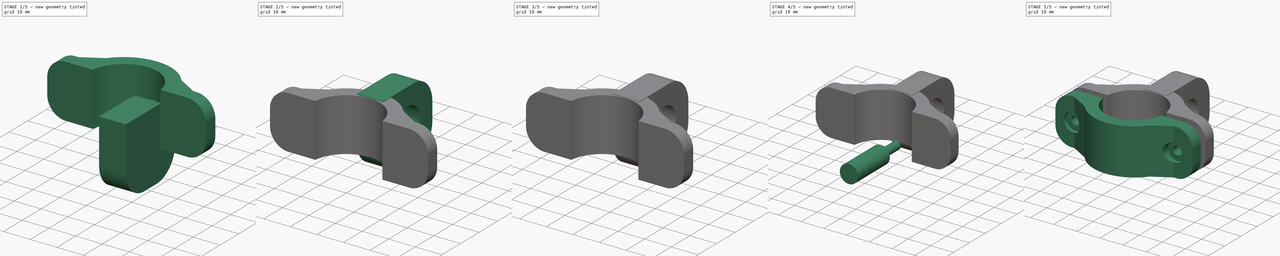
[diagram: build sequence overview — one tinted view per stage of 5, left to right]
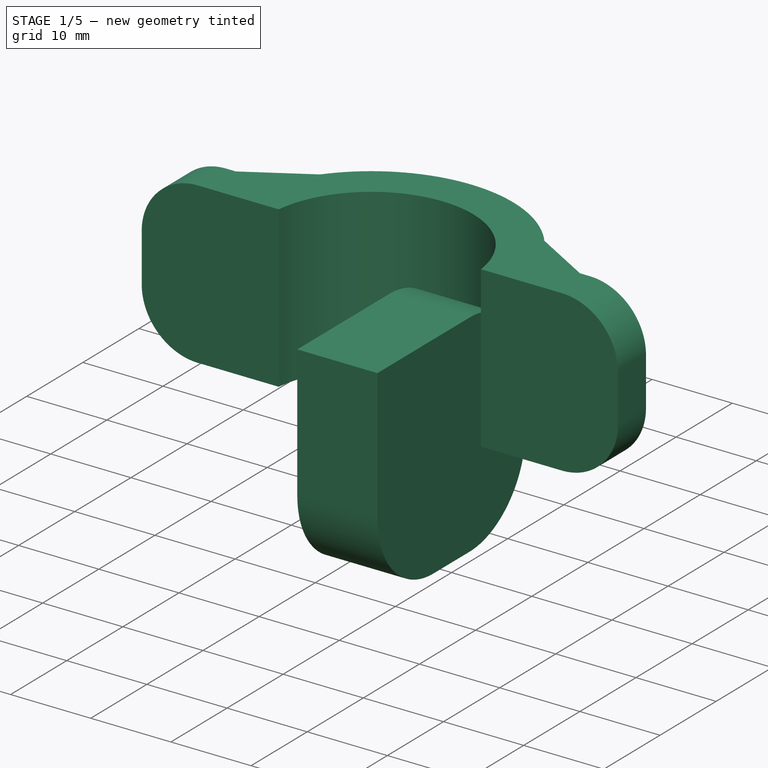
[diagram: stage 1 of 5 — iso view after this stage's code; geometry added in this stage tinted green]
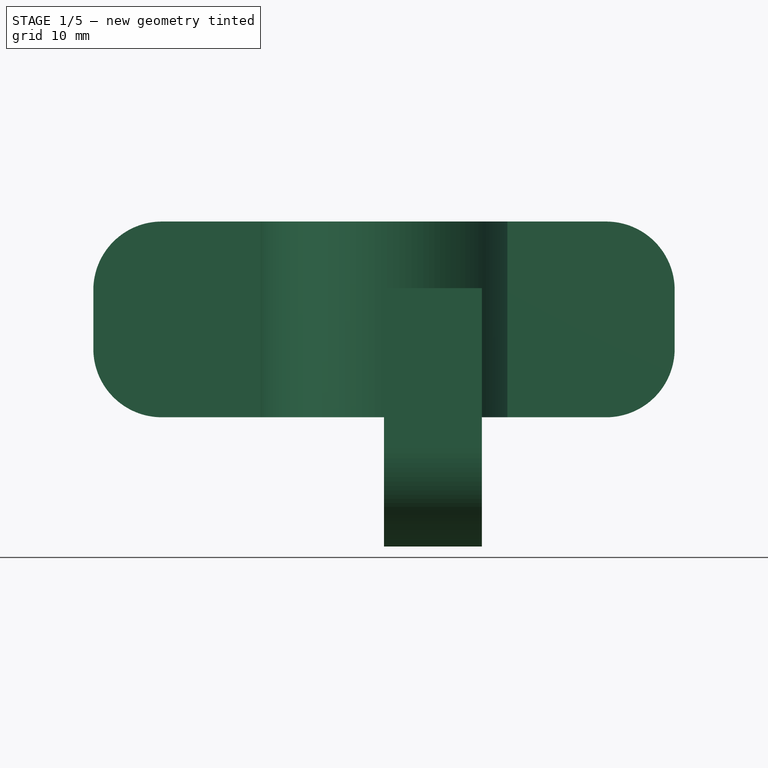
[diagram: stage 1 of 5 — front view after this stage's code; geometry added in this stage tinted green]
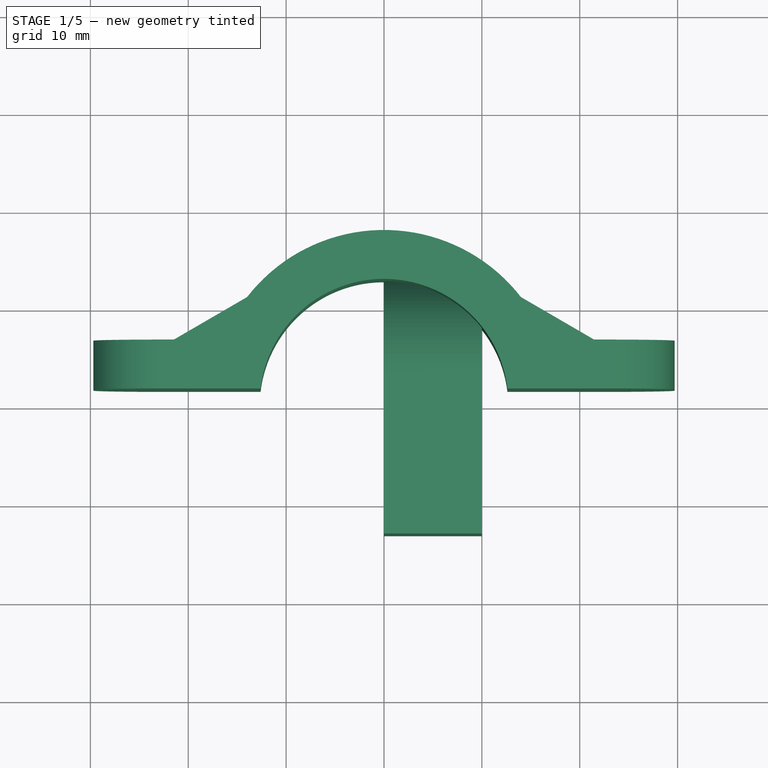
[diagram: stage 1 of 5 — top view after this stage's code; geometry added in this stage tinted green]
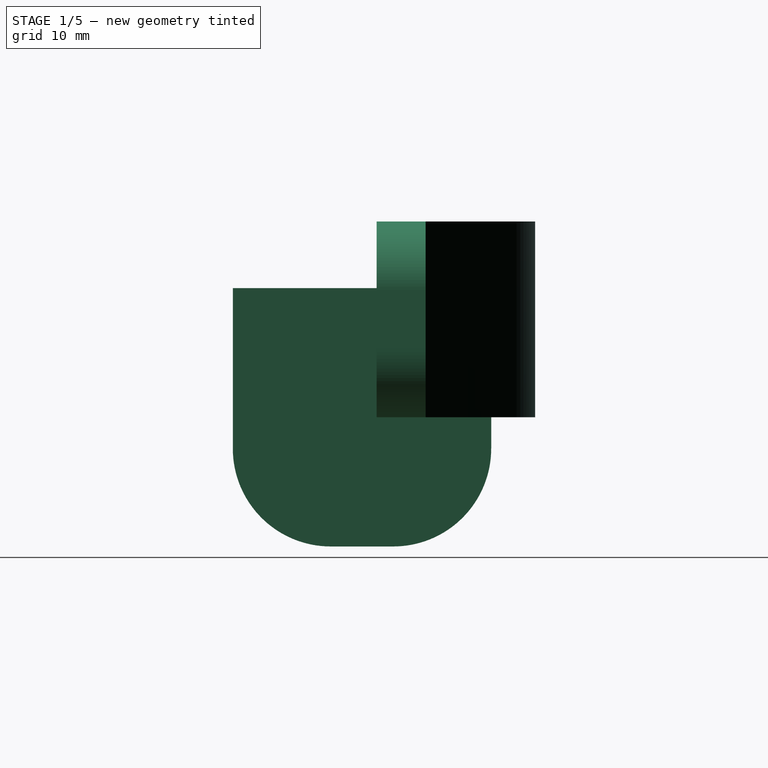
[diagram: stage 1 of 5 — right view after this stage's code; geometry added in this stage tinted green]
FCSTD DOCUMENT  (FreeCAD 0.19R)
Label: pipe_25mm_attach_16mm_bring
License: All rights reserved
LicenseURL: http://en.wikipedia.org/wiki/All_rights_reserved
objects: PartDesign::Body×5, Part::Cylinder×5, Part::Feature×4, Sketcher::SketchObject×4, PartDesign::Pad×4, Part::MultiFuse×3, Part::Cut×3, App::Part×3, PartDesign::FeatureBase×3, PartDesign::ShapeBinder×2, Part::FeaturePython×2, Spreadsheet::Sheet×1, Part::Mirroring×1, Part::Box×1, Part::Fillet×1
note: 40 computed .brp shape members not serialized (recipe doc carries the construction recipe); baked Part::Feature solids carry a one-line shape summary decoded from their .brp

FEATURE [Part::Cylinder] Cylinder005  label="bring holder hole"
  Angle = 360
  AttacherType = Attacher::AttachEngine3D
  Height = 10
  Placement = pos=(0,0,0) rot=(0,1,0;1.5708rad)
  Radius = 6.5
  expr: Radius = <<p>>.bring_holder_hole_r
  expr: Height = <<p>>.bring_holder_size
FEATURE [Part::Box] Box  label="outer bring holder cube"
  AttacherType = Attacher::AttachEngine3D
  Height = 26.4
  Length = 10
  Placement = pos=(0,-13.2,-13.2) rot=(0,0,1;0rad)
  Width = 26.4
  expr: .Placement.Base.z = -Height / 2
  expr: .Placement.Base.y = -Width / 2
  expr: Width = (<<p>>.bring_r + <<p>>.attachment_wall) * 2
  expr: Length = <<p>>.bring_holder_size
  expr: Height = (<<p>>.bring_r + <<p>>.attachment_wall) * 2
FEATURE [Part::Fillet] Fillet  label="outer bring holder cube fillet"
  Base = -> Box
  Edges = 3 edges r=10: [Edge9,Edge11,Edge12]
FEATURE [PartDesign::Body] Body003  label="bring holder cut clone"
  BaseFeature = -> Cut023015003
  Group = -> [Clone002]
  Origin = -> Origin005
  Placement = pos=(0,8,9) rot=(0,0,1;0rad)
  Tip = -> Clone002
FEATURE [Part::Feature] Cut023015004  label="tube block cut003"
  shape: bbox 59.4 x 35.4 x 20 mm, 58 faces, 2 solids (baked)
FEATURE [PartDesign::ShapeBinder] ShapeBinder001
  Support = -> [Cut023015004]
  TraceSupport = false
FEATURE [Sketcher::SketchObject] Sketch003
  ExternalGeometry = -> [ShapeBinder001]
  FullyConstrained = false
  MapMode = 5
  Support = -> [XY_Plane008]
  expr: Constraints[2] = <<p>>.pipe_r
  expr: Constraints[18] = <<p>>.pipe_r + <<p>>.attachment_wall
  sketch-geometry (10):
    g0: ArcOfCircle CenterX=2.13e-14 CenterY=3.09e-14 CenterZ=0 NormalX=0 NormalY=0 NormalZ=1 AngleXU=0 Radius=12.7 StartAngle=0.118387 EndAngle=3.02321
    g1: LineSegment StartX=-22.7 StartY=1.5 StartZ=0 EndX=-22.7 EndY=6.5 EndZ=0
    g2: LineSegment StartX=-22.7 StartY=6.5 StartZ=0 EndX=-21.4633 EndY=6.5 EndZ=0
    g3: LineSegment StartX=-21.4633 StartY=6.5 StartZ=0 EndX=-13.9887 EndY=10.8447 EndZ=0
    g4: LineSegment StartX=13.9887 StartY=10.8447 StartZ=0 EndX=21.4633 EndY=6.5 EndZ=0
    g5: LineSegment StartX=21.4633 StartY=6.5 StartZ=0 EndX=22.7 EndY=6.5 EndZ=0
    g6: LineSegment StartX=22.7 StartY=6.5 StartZ=0 EndX=22.7 EndY=1.5 EndZ=0
    g7: ArcOfCircle CenterX=-7e-16 CenterY=-5.789e-13 CenterZ=0 NormalX=0 NormalY=0 NormalZ=1 AngleXU=0 Radius=17.7 StartAngle=0.659465 EndAngle=2.48213
    g8: LineSegment StartX=-22.7 StartY=1.5 StartZ=0 EndX=-12.6111 EndY=1.5 EndZ=0
    g9: LineSegment StartX=12.6111 StartY=1.5 StartZ=0 EndX=22.7 EndY=1.5 EndZ=0
  constraints (23):
    c: Coincident(g0,g-3)
    c: Coincident(g0,g-4)
    c: Radius(g0) = 12.7
    c: Coincident(g1,g-5)
    c: Coincident(g1,g-7)
    c: Coincident(g2,g1)
    c: Coincident(g2,g-8)
    c: Coincident(g3,g2)
    c: Coincident(g3,g-9)
    c: Coincident(g4,g-10)
    c: Coincident(g4,g-11)
    c: Coincident(g5,g4)
    c: Horizontal(g5)
    c: Coincident(g6,g5)
    c: Coincident(g6,g-6)
    c: Vertical(g6)
    c: Coincident(g7,g3)
    c: Coincident(g7,g4)
    c: Radius(g7) = 17.7
    c: Coincident(g8,g1)
    c: Coincident(g8,g0)
    c: Coincident(g9,g0)
    c: Coincident(g9,g6)
FEATURE [PartDesign::Pad] Pad002
  Direction = (1,1,1)
  Length = 20
  Length2 = 100
  Profile = -> Sketch003
  Type = 0
  expr: Length = <<p>>.attachment_size
FEATURE [Sketcher::SketchObject] Sketch004
  AttachmentOffset = pos=(0,0,-1.5) rot=(0,0,1;0rad)
  ExternalGeometry = -> [Pad002,ShapeBinder001]
  FullyConstrained = false
  MapMode = 5
  Placement = pos=(0,1.5,3e-16) rot=(1,0,0;1.5708rad)
  Support = -> [XZ_Plane008]
  sketch-geometry (12):
    g0: LineSegment StartX=-12.6111 StartY=20 StartZ=0 EndX=-22.7 EndY=20 EndZ=0
    g1: LineSegment StartX=-12.6111 StartY=0 StartZ=0 EndX=-22.7 EndY=0 EndZ=0
    g2: LineSegment StartX=12.6111 StartY=20 StartZ=0 EndX=22.7 EndY=20 EndZ=0
    g3: LineSegment StartX=22.7 StartY=0 StartZ=0 EndX=12.6111 EndY=0 EndZ=0
    g4: LineSegment StartX=-12.6111 StartY=20 StartZ=0 EndX=-12.6111 EndY=0 EndZ=0
    g5: LineSegment StartX=12.6111 StartY=20 StartZ=0 EndX=12.6111 EndY=0 EndZ=0
    g6: LineSegment StartX=-29.7 StartY=13 StartZ=0 EndX=-29.7 EndY=7 EndZ=0
    g7: LineSegment StartX=29.7 StartY=13 StartZ=0 EndX=29.7 EndY=7 EndZ=0
    g8: ArcOfCircle CenterX=-22.7 CenterY=7 CenterZ=0 NormalX=0 NormalY=0 NormalZ=1 AngleXU=0 Radius=7 StartAngle=3.14159 EndAngle=4.71239
    g9: ArcOfCircle CenterX=-22.7 CenterY=13 CenterZ=0 NormalX=0 NormalY=0 NormalZ=1 AngleXU=0 Radius=7 StartAngle=1.5708 EndAngle=3.14159
    g10: ArcOfCircle CenterX=22.7 CenterY=13 CenterZ=0 NormalX=0 NormalY=0 NormalZ=1 AngleXU=0 Radius=7 StartAngle=-1.688e-13 EndAngle=1.5708
    g11: ArcOfCircle CenterX=22.7 CenterY=7 CenterZ=0 NormalX=0 NormalY=0 NormalZ=1 AngleXU=0 Radius=7 StartAngle=4.71239 EndAngle=6.28319
  constraints (24):
    c: Coincident(g0,g-7)
    c: Coincident(g1,g-8)
    c: Coincident(g1,g-3) = 1.5708
    c: Coincident(g0,g-4) = -1.5708
    c: Coincident(g2,g-9)
    c: Coincident(g3,g-10)
    c: Coincident(g4,g0)
    c: Coincident(g4,g1)
    c: Coincident(g5,g2)
    c: Coincident(g5,g3)
    c: Coincident(g2,g-5) = 1.5708
    c: Coincident(g3,g-6) = 1.5708
    c: Coincident(g6,g-11)
    c: Coincident(g6,g-12)
    c: Coincident(g7,g-13)
    c: Coincident(g7,g-14)
    c: Coincident(g8,g6)
    c: Coincident(g9,g6)
    c: Coincident(g10,g7)
    c: Coincident(g11,g7)
    c: Tangent(g9,g0) = -1.5708
    c: Tangent(g8,g1) = 1.5708
    c: Tangent(g10,g2) = 1.5708
    c: Tangent(g11,g3) = 1.5708
FEATURE [PartDesign::Pad] Pad003
  BaseFeature = -> Pad002
  Direction = (1,1,1)
  Length = 5
  Length2 = 100
  Profile = -> Sketch004
  Reversed = true
  Type = 0
  expr: Length = <<p>>.attachment_wall
FEATURE [PartDesign::Body] Body005  label="25 mm attachment V2 body"
  Group = -> [ShapeBinder001,Sketch003,Pad002,Sketch004,Pad003]
  Origin = -> Origin008
  Tip = -> Pad003
FEATURE [App::Part] Part002  label="25 mm attachment V2 part"
  Group = -> [Body005]
  Origin = -> Origin006
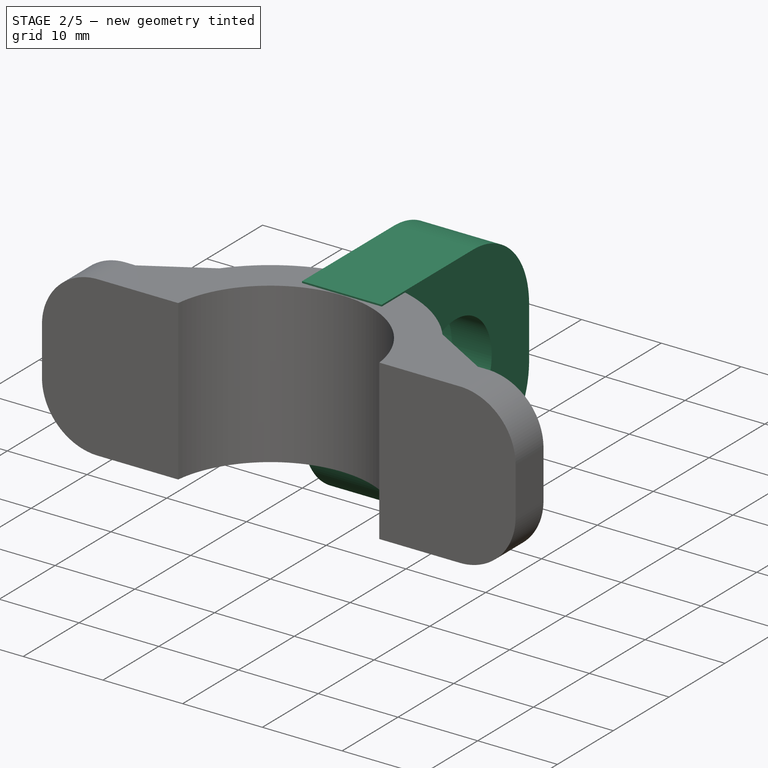
[diagram: stage 2 of 5 — iso view after this stage's code; geometry added in this stage tinted green]
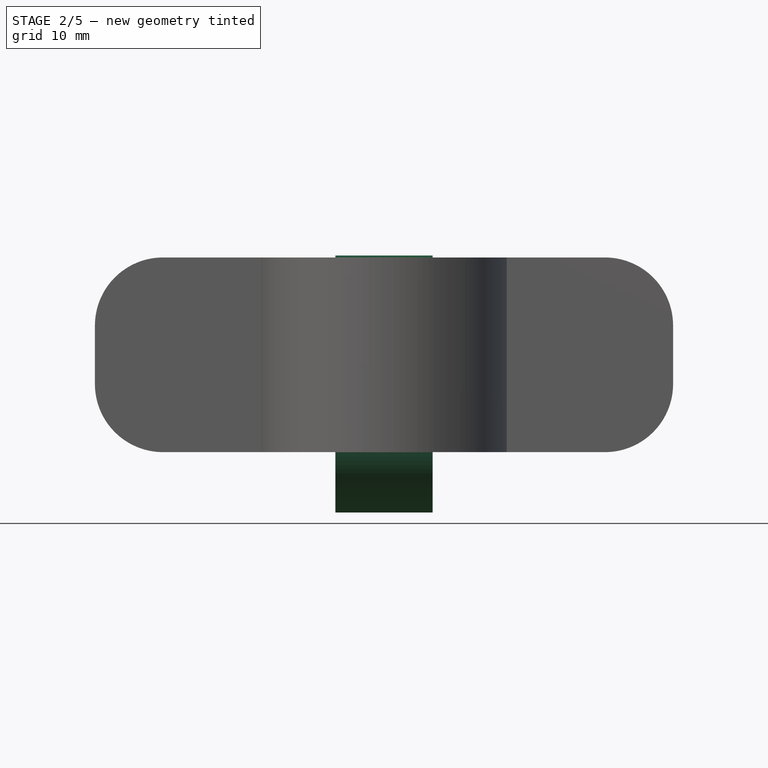
[diagram: stage 2 of 5 — front view after this stage's code; geometry added in this stage tinted green]
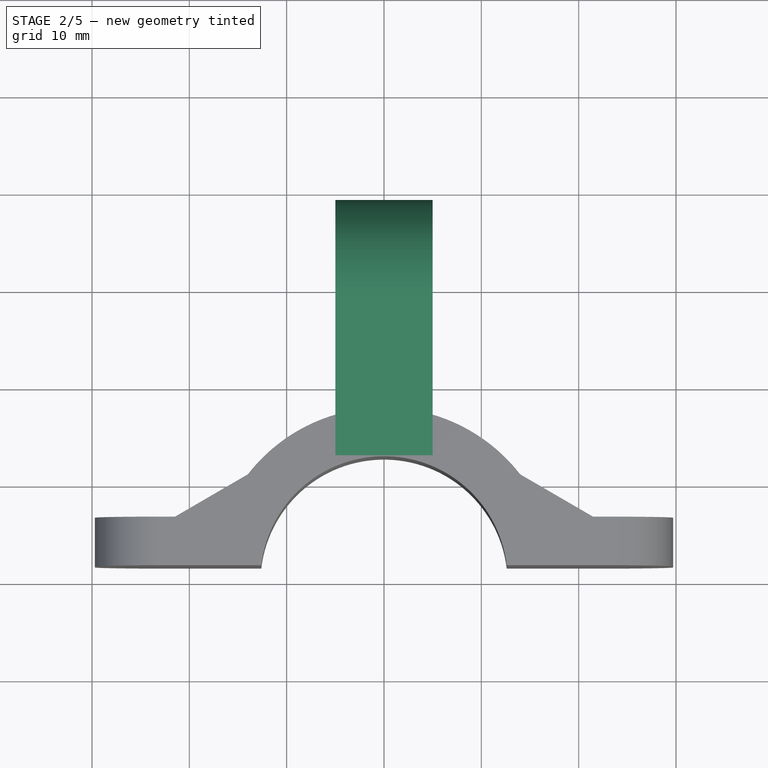
[diagram: stage 2 of 5 — top view after this stage's code; geometry added in this stage tinted green]
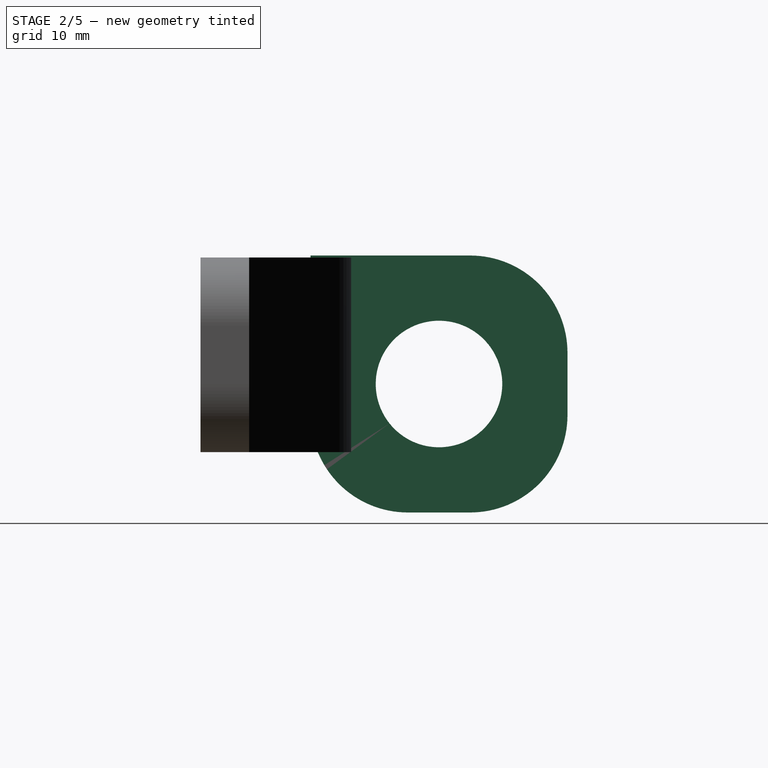
[diagram: stage 2 of 5 — right view after this stage's code; geometry added in this stage tinted green]
FEATURE [PartDesign::Body] Body002  label="25 mm attachment inserted clone"
  BaseFeature = -> Cut023015002
  Group = -> [Clone001]
  Origin = -> Origin003
  Tip = -> Clone001
FEATURE [Part::Cylinder] Cylinder004  label="inner bring holder cylinder"
  Angle = 360
  AttacherType = Attacher::AttachEngine3D
  Height = 5
  Placement = pos=(0,0,0) rot=(0,1,0;1.5708rad)
  Radius = 8.2
  expr: Height = <<p>>.bring_size
  expr: Radius = <<p>>.bring_r
FEATURE [Part::MultiFuse] Fusion001  label="bring holder extract"
  Shapes = -> [Cylinder004,Cylinder005]
FEATURE [Part::Cut] Cut023015003  label="bring holder cut"
  Base = -> Fillet
  Placement = pos=(-5,26,7) rot=(0,0,1;0rad)
  Tool = -> Fusion001
  expr: .Placement.Base.x = -<<p>>.bring_holder_size / 2
FEATURE [App::Part] Part001  label="25 mm 16mm bring attachment part"
  Group = -> [Fusion002]
  Origin = -> Origin004
FEATURE [Part::Feature] Cut002003  label="bottom half cut001"
  shape: bbox 64.6 x 27.3 x 30 mm, 38 faces (baked)
FEATURE [Part::Feature] Cut001001  label="top half cut001"
  shape: bbox 64.6 x 27.3 x 30 mm, 38 faces (baked)
FEATURE [PartDesign::FeatureBase] Clone002
  BaseFeature = -> Cut023015003
  Placement = pos=(-5,26,7) rot=(0,0,1;0rad)
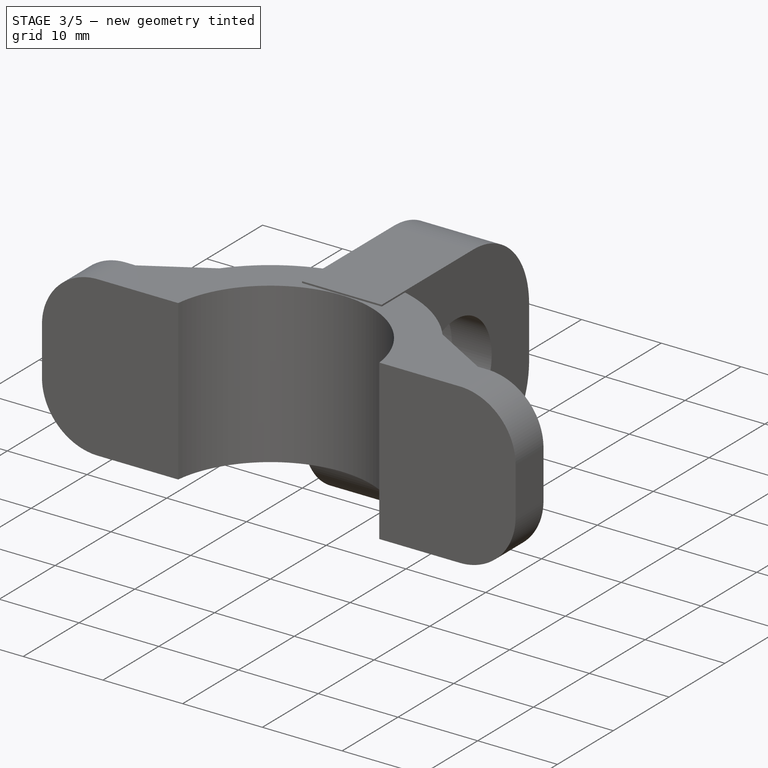
[diagram: stage 3 of 5 — iso view after this stage's code; geometry added in this stage tinted green]
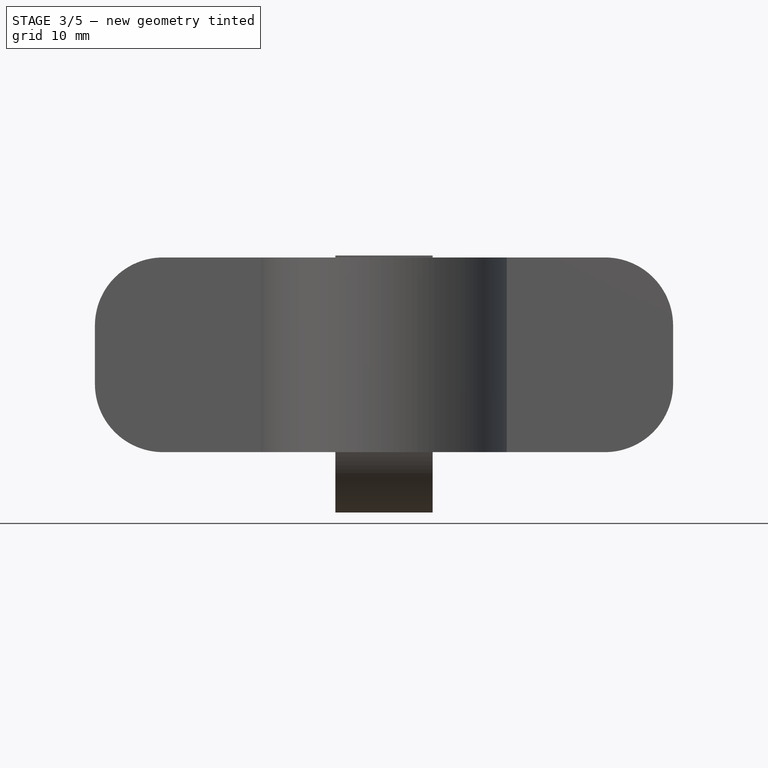
[diagram: stage 3 of 5 — front view after this stage's code; geometry added in this stage tinted green]
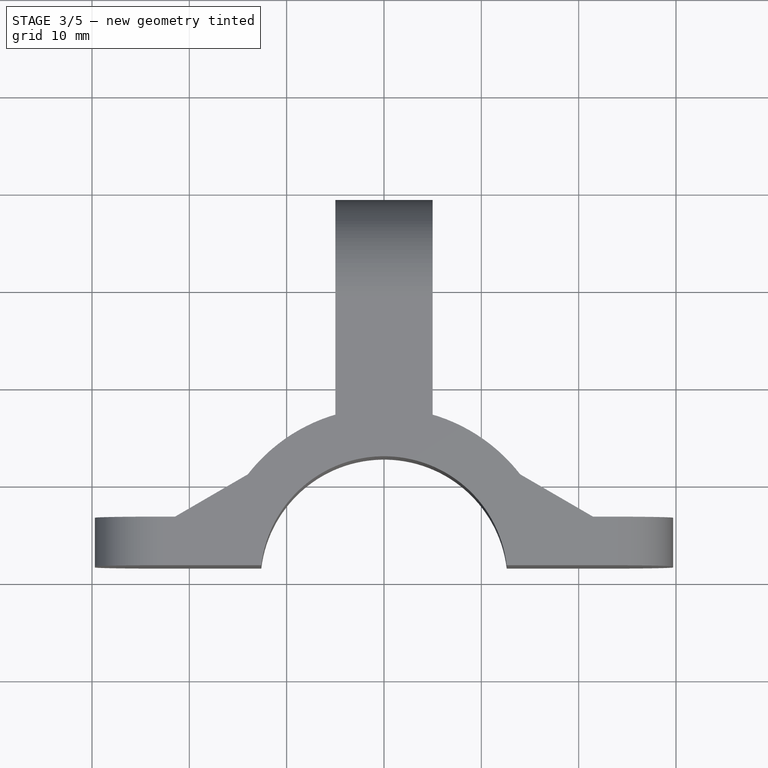
[diagram: stage 3 of 5 — top view after this stage's code; geometry added in this stage tinted green]
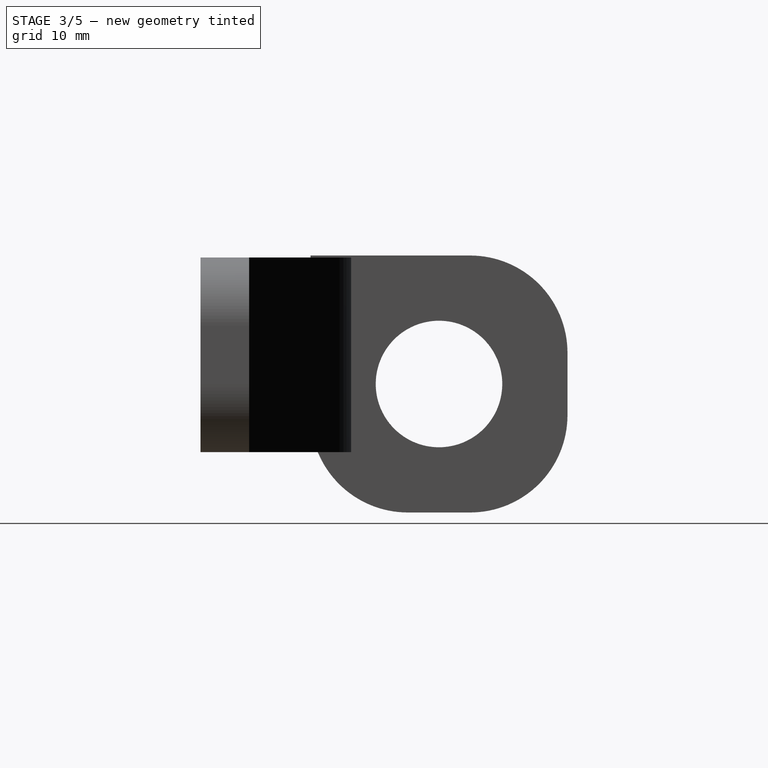
[diagram: stage 3 of 5 — right view after this stage's code; geometry added in this stage tinted green]
FEATURE [Part::Feature] Cut023015001  label="tube block cut002"
  shape: bbox 59.4 x 35.4 x 20 mm, 58 faces, 2 solids (baked)
FEATURE [Spreadsheet::Sheet] Spreadsheet  label="p"
  cells = A1=pipe_r; B1(pipe_r)==12.7mm; A2=attachment_wall; B2(attachment_wall)==5mm; A3=attachment_size; B3(attachment_size)==20mm; A4=insert_r; B4(insert_r)==2.2mm; A5=hole_r; B5(hole_r)==1.8mm; A6=bolt_head_r; B6(bolt_head_r)==4mm; A7=bring_r; B7(bring_r)==8.199999999999999mm; A8=bring_size; B8(bring_size)==5mm; A9=bring_holder_size; B9(bring_holder_size)==10mm; A10=bring_holder_hole_r; B10(bring_holder_hole_r)==6.5mm
FEATURE [PartDesign::ShapeBinder] ShapeBinder
  Support = -> [Cut023015001]
  TraceSupport = false
FEATURE [Sketcher::SketchObject] Sketch
  ExternalGeometry = -> [ShapeBinder]
  FullyConstrained = false
  MapMode = 5
  Support = -> [XY_Plane001]
  expr: Constraints[18] = <<p>>.pipe_r + <<p>>.attachment_wall
  expr: Constraints[2] = <<p>>.pipe_r
  sketch-geometry (10):
    g0: ArcOfCircle CenterX=2.13e-14 CenterY=3.09e-14 CenterZ=0 NormalX=0 NormalY=0 NormalZ=1 AngleXU=0 Radius=12.7 StartAngle=0.118387 EndAngle=3.02321
    g1: LineSegment StartX=-22.7 StartY=1.5 StartZ=0 EndX=-22.7 EndY=6.5 EndZ=0
    g2: LineSegment StartX=-22.7 StartY=6.5 StartZ=0 EndX=-21.4633 EndY=6.5 EndZ=0
    g3: LineSegment StartX=-21.4633 StartY=6.5 StartZ=0 EndX=-13.9887 EndY=10.8447 EndZ=0
    g4: LineSegment StartX=13.9887 StartY=10.8447 StartZ=0 EndX=21.4633 EndY=6.5 EndZ=0
    g5: LineSegment StartX=21.4633 StartY=6.5 StartZ=0 EndX=22.7 EndY=6.5 EndZ=0
    g6: LineSegment StartX=22.7 StartY=6.5 StartZ=0 EndX=22.7 EndY=1.5 EndZ=0
    g7: ArcOfCircle CenterX=-7e-16 CenterY=-5.789e-13 CenterZ=0 NormalX=0 NormalY=0 NormalZ=1 AngleXU=0 Radius=17.7 StartAngle=0.659465 EndAngle=2.48213
    g8: LineSegment StartX=-22.7 StartY=1.5 StartZ=0 EndX=-12.6111 EndY=1.5 EndZ=0
    g9: LineSegment StartX=12.6111 StartY=1.5 StartZ=0 EndX=22.7 EndY=1.5 EndZ=0
  constraints (23):
    c: Coincident(g0,g-3)
    c: Coincident(g0,g-4)
    c: Radius(g0) = 12.7
    c: Coincident(g1,g-5)
    c: Coincident(g1,g-7)
    c: Coincident(g2,g1)
    c: Coincident(g2,g-8)
    c: Coincident(g3,g2)
    c: Coincident(g3,g-9)
    c: Coincident(g4,g-10)
    c: Coincident(g4,g-11)
    c: Coincident(g5,g4)
    c: Horizontal(g5)
    c: Coincident(g6,g5)
    c: Coincident(g6,g-6)
    c: Vertical(g6)
    c: Coincident(g7,g3)
    c: Coincident(g7,g4)
    c: Radius(g7) = 17.7
    c: Coincident(g8,g1)
    c: Coincident(g8,g0)
    c: Coincident(g9,g0)
    c: Coincident(g9,g6)
FEATURE [PartDesign::Pad] Pad
  Direction = (1,1,1)
  Length = 20
  Length2 = 100
  Profile = -> Sketch
  Type = 0
  expr: Length = <<p>>.attachment_size
FEATURE [Sketcher::SketchObject] Sketch001
  AttachmentOffset = pos=(0,0,-1.5) rot=(0,0,1;0rad)
  ExternalGeometry = -> [Pad,ShapeBinder]
  FullyConstrained = false
  MapMode = 5
  Placement = pos=(0,1.5,3e-16) rot=(1,0,0;1.5708rad)
  Support = -> [XZ_Plane001]
  sketch-geometry (12):
    g0: LineSegment StartX=-12.6111 StartY=20 StartZ=0 EndX=-22.7 EndY=20 EndZ=0
    g1: LineSegment StartX=-12.6111 StartY=0 StartZ=0 EndX=-22.7 EndY=0 EndZ=0
    g2: LineSegment StartX=12.6111 StartY=20 StartZ=0 EndX=22.7 EndY=20 EndZ=0
    g3: LineSegment StartX=22.7 StartY=0 StartZ=0 EndX=12.6111 EndY=0 EndZ=0
    g4: LineSegment StartX=-12.6111 StartY=20 StartZ=0 EndX=-12.6111 EndY=0 EndZ=0
    g5: LineSegment StartX=12.6111 StartY=20 StartZ=0 EndX=12.6111 EndY=0 EndZ=0
    g6: LineSegment StartX=-29.7 StartY=13 StartZ=0 EndX=-29.7 EndY=7 EndZ=0
    g7: LineSegment StartX=29.7 StartY=13 StartZ=0 EndX=29.7 EndY=7 EndZ=0
    g8: ArcOfCircle CenterX=-22.7 CenterY=7 CenterZ=0 NormalX=0 NormalY=0 NormalZ=1 AngleXU=0 Radius=7 StartAngle=3.14159 EndAngle=4.71239
    g9: ArcOfCircle CenterX=-22.7 CenterY=13 CenterZ=0 NormalX=0 NormalY=0 NormalZ=1 AngleXU=0 Radius=7 StartAngle=1.5708 EndAngle=3.14159
    g10: ArcOfCircle CenterX=22.7 CenterY=13 CenterZ=0 NormalX=0 NormalY=0 NormalZ=1 AngleXU=0 Radius=7 StartAngle=-1.688e-13 EndAngle=1.5708
    g11: ArcOfCircle CenterX=22.7 CenterY=7 CenterZ=0 NormalX=0 NormalY=0 NormalZ=1 AngleXU=0 Radius=7 StartAngle=4.71239 EndAngle=6.28319
  constraints (24):
    c: Coincident(g0,g-7)
    c: Coincident(g1,g-8)
    c: Coincident(g1,g-3) = 1.5708
    c: Coincident(g0,g-4) = -1.5708
    c: Coincident(g2,g-9)
    c: Coincident(g3,g-10)
    c: Coincident(g4,g0)
    c: Coincident(g4,g1)
    c: Coincident(g5,g2)
    c: Coincident(g5,g3)
    c: Coincident(g2,g-5) = 1.5708
    c: Coincident(g3,g-6) = 1.5708
    c: Coincident(g6,g-11)
    c: Coincident(g6,g-12)
    c: Coincident(g7,g-13)
    c: Coincident(g7,g-14)
    c: Coincident(g8,g6)
    c: Coincident(g9,g6)
    c: Coincident(g10,g7)
    c: Coincident(g11,g7)
    c: Tangent(g9,g0) = -1.5708
    c: Tangent(g8,g1) = 1.5708
    c: Tangent(g10,g2) = 1.5708
    c: Tangent(g11,g3) = 1.5708
FEATURE [PartDesign::Pad] Pad001
  BaseFeature = -> Pad
  Direction = (1,1,1)
  Length = 5
  Length2 = 100
  Profile = -> Sketch001
  Reversed = true
  Type = 0
  expr: Length = <<p>>.attachment_wall
FEATURE [Part::Cylinder] Cylinder002  label="insert hole"
  Angle = 360
  AttacherType = Attacher::AttachEngine3D
  Height = 20
  Placement = pos=(0,0,0) rot=(1,0,0;1.5708rad)
  Radius = 2.2
  expr: Radius = <<p>>.insert_r
FEATURE [Part::FeaturePython] Array001  label="bolt hole array001"  # Draft array (typed FeaturePython)
  Angle = 360
  ArrayType = 0
  Axis = (0,0,1)
  Base = -> Cylinder002
  Center = (0,0,0)
  Count = 2
  ExpandArray = false
  Fuse = false
  IntervalAxis = (0,0,0)
  IntervalX = (44,0,0)
  IntervalY = (0,100,0)
  IntervalZ = (0,0,100)
  NumberCircles = 3
  NumberPolar = 5
  NumberX = 2
  NumberY = 1
  NumberZ = 1
  Placement = pos=(-22,20,10) rot=(0,0,1;0rad)
  PlacementList = 2 placements: [(0,0,0),(44,0,0)]
  RadialDistance = 50
  ScaleList = (2) [(1,1,1),(1,1,1)]
  Symmetry = 1
  TangentialDistance = 25
  expr: .Placement.Base.y = <<insert hole>>.Height
  expr: .Placement.Base.z = <<p>>.attachment_size / 2
  expr: .Placement.Base.x = -.IntervalX.x / 2
FEATURE [Part::Cut] Cut023015002  label="25 mm attachment inserted cut"
  Base = -> Body
  Tool = -> Array001
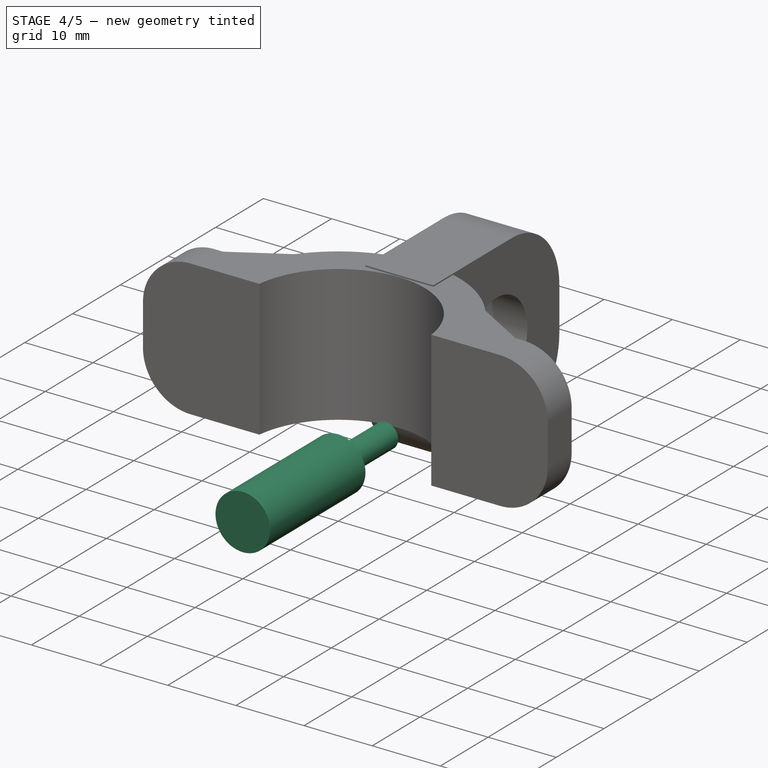
[diagram: stage 4 of 5 — iso view after this stage's code; geometry added in this stage tinted green]
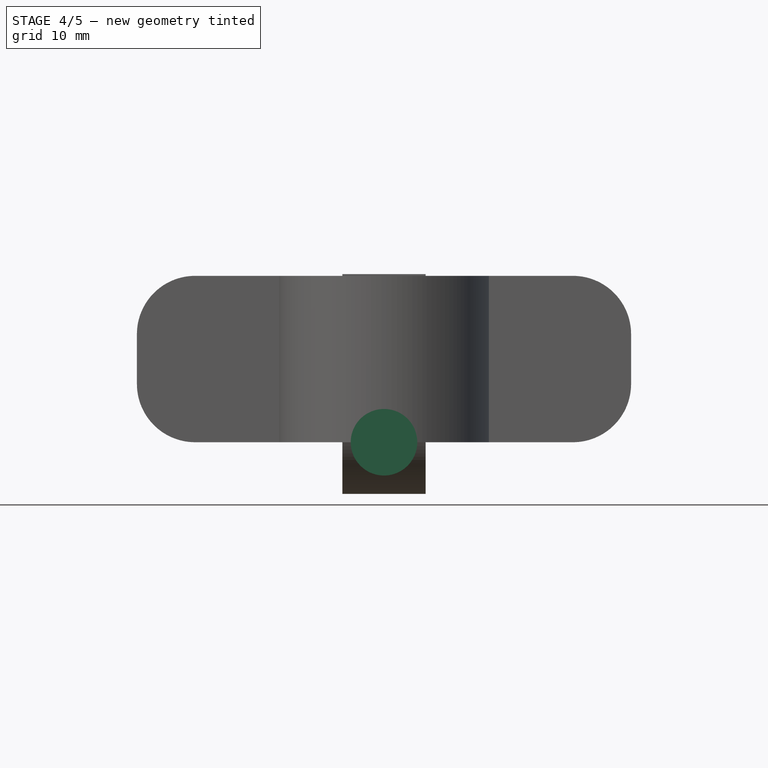
[diagram: stage 4 of 5 — front view after this stage's code; geometry added in this stage tinted green]
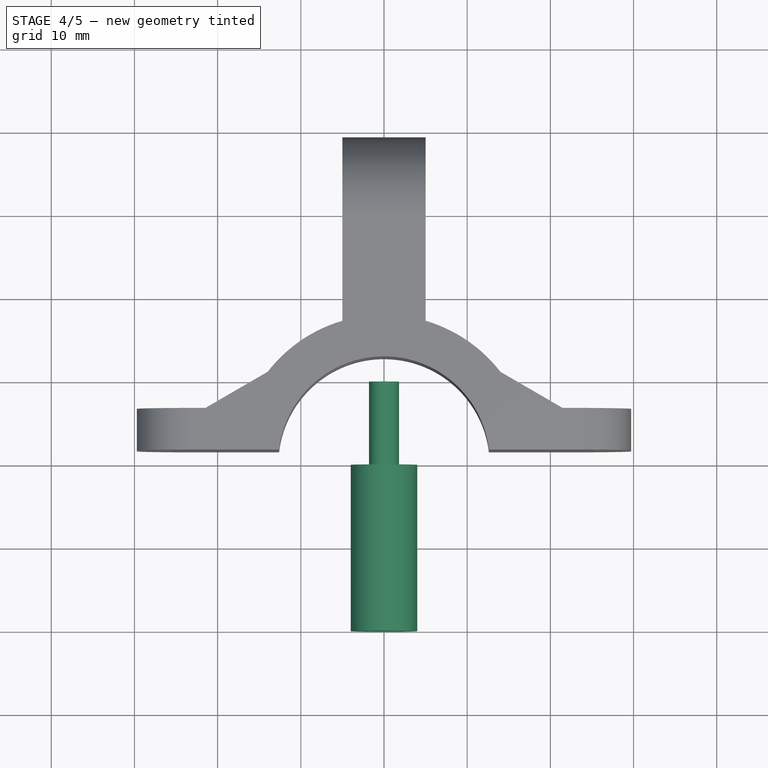
[diagram: stage 4 of 5 — top view after this stage's code; geometry added in this stage tinted green]
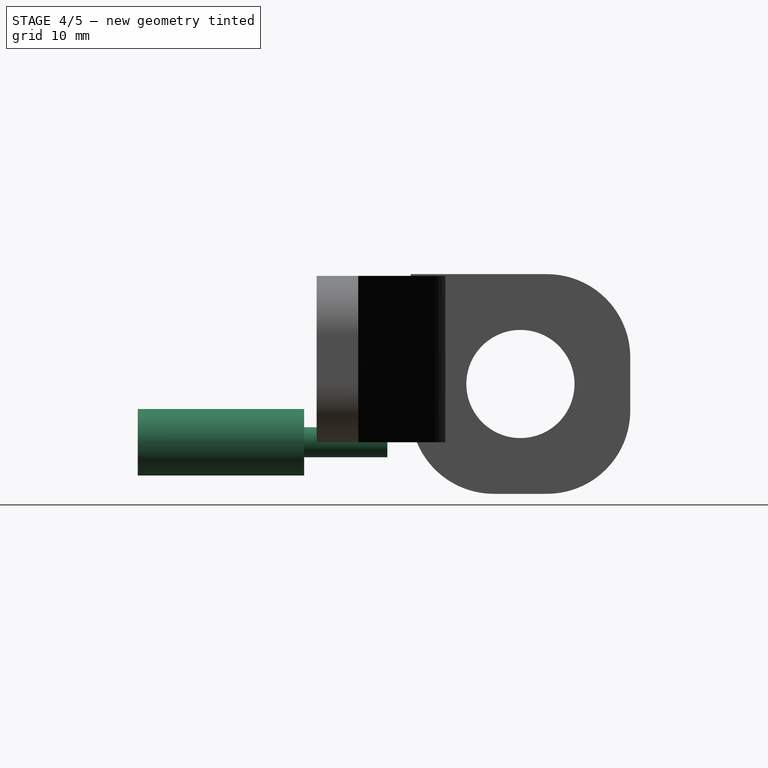
[diagram: stage 4 of 5 — right view after this stage's code; geometry added in this stage tinted green]
FEATURE [Part::Cylinder] Cylinder  label="bolt hole"
  Angle = 360
  AttacherType = Attacher::AttachEngine3D
  Height = 20
  Placement = pos=(0,10,0) rot=(1,0,0;1.5708rad)
  Radius = 1.8
  expr: Radius = <<p>>.hole_r
FEATURE [Part::Cylinder] Cylinder001  label="bolt head hole"
  Angle = 360
  AttacherType = Attacher::AttachEngine3D
  Height = 20
  Placement = pos=(0,0,0) rot=(1,0,0;1.5708rad)
  Radius = 4
  expr: Radius = <<p>>.bolt_head_r
FEATURE [PartDesign::Body] Body001  label="25 mm attachment holed clone"
  BaseFeature = -> Cut
  Group = -> [Clone]
  Origin = -> Origin002
  Tip = -> Clone
FEATURE [PartDesign::FeatureBase] Clone001
  BaseFeature = -> Cut023015002
FEATURE [Part::MultiFuse] Fusion002  label="25 mm 16mm bring attachment fusion"
  Shapes = -> [Body002,Cut023015003]
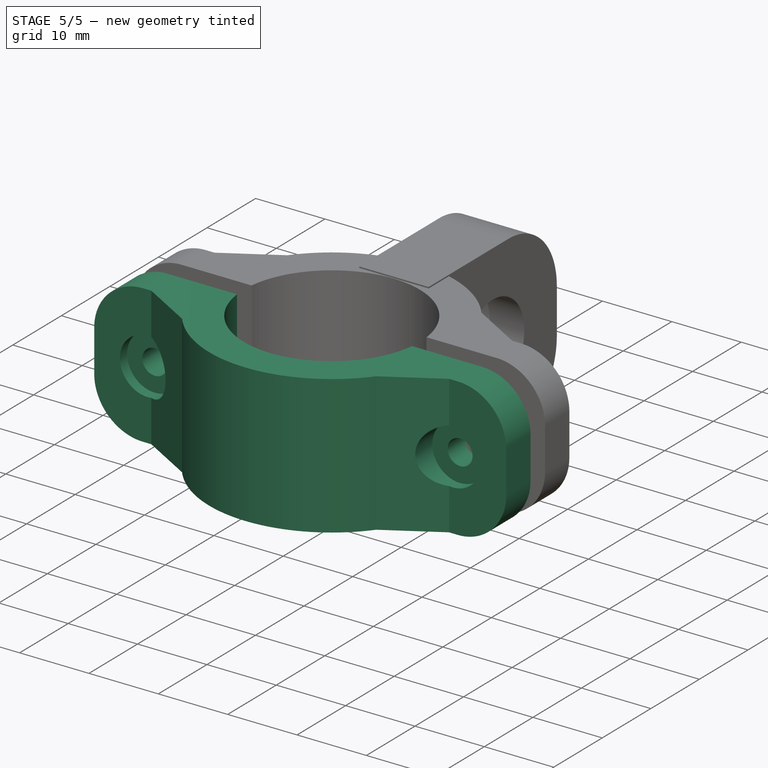
[diagram: stage 5 of 5 — iso view after this stage's code; geometry added in this stage tinted green]
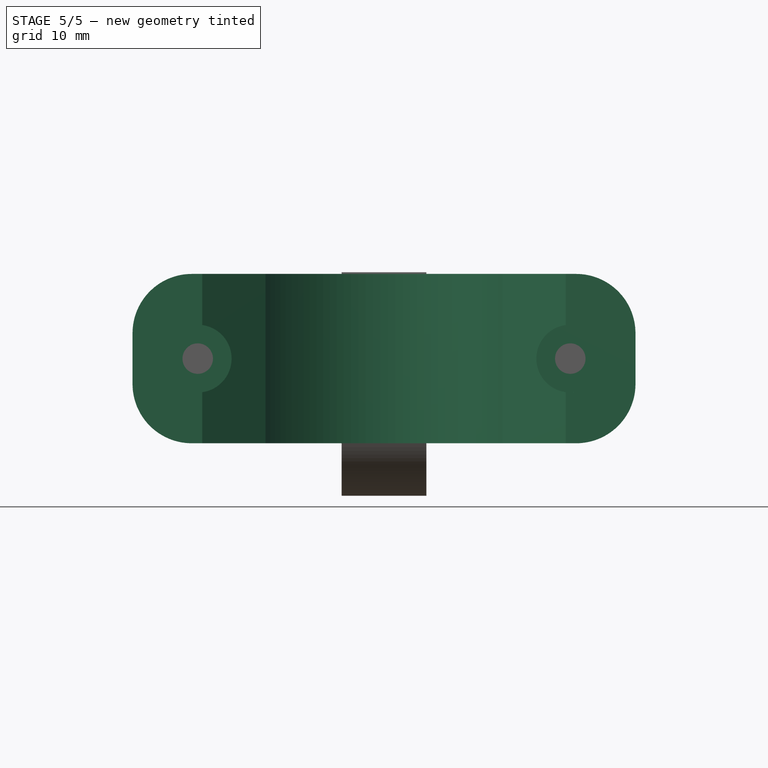
[diagram: stage 5 of 5 — front view after this stage's code; geometry added in this stage tinted green]
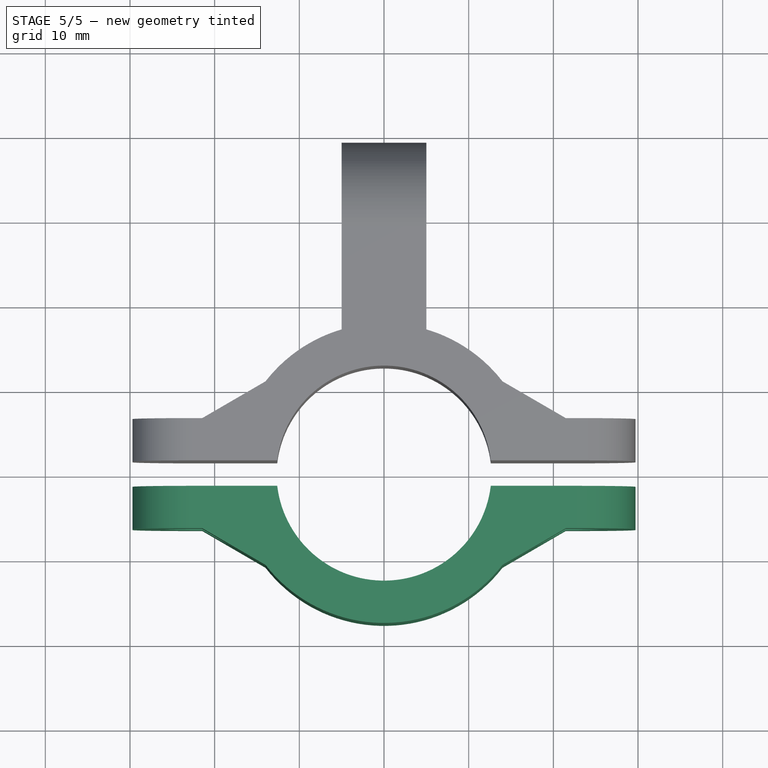
[diagram: stage 5 of 5 — top view after this stage's code; geometry added in this stage tinted green]
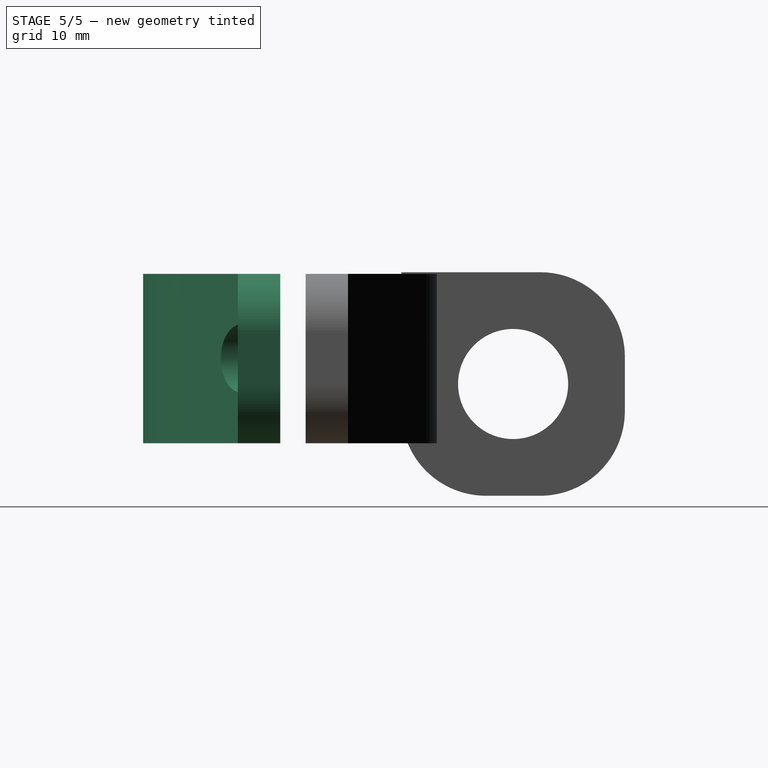
[diagram: stage 5 of 5 — right view after this stage's code; geometry added in this stage tinted green]
FEATURE [PartDesign::Body] Body  label="25 mm attachment body"
  Group = -> [ShapeBinder,Sketch,Pad,Sketch001,Pad001]
  Origin = -> Origin001
  Tip = -> Pad001
FEATURE [Part::Mirroring] Part__Mirroring  label="25 mm attachment body (Mirror #1)"
  Base = (0,0,0)
  Normal = (0,1,0)
  Source = -> Body
FEATURE [Part::MultiFuse] Fusion  label="bolt hole fusion"
  Shapes = -> [Cylinder,Cylinder001]
FEATURE [Part::FeaturePython] Array  label="bolt hole array"  # Draft array (typed FeaturePython)
  Angle = 360
  ArrayType = 0
  Axis = (0,0,1)
  Base = -> Fusion
  Center = (0,0,0)
  Count = 2
  ExpandArray = false
  Fuse = false
  IntervalAxis = (0,0,0)
  IntervalX = (44,0,0)
  IntervalY = (0,100,0)
  IntervalZ = (0,0,100)
  NumberCircles = 3
  NumberPolar = 5
  NumberX = 2
  NumberY = 1
  NumberZ = 1
  Placement = pos=(-22,-5,10) rot=(0,0,1;0rad)
  PlacementList = 2 placements: [(0,0,0),(44,0,0)]
  RadialDistance = 50
  ScaleList = (2) [(1,1,1),(1,1,1)]
  Symmetry = 1
  TangentialDistance = 25
  expr: .Placement.Base.x = -.IntervalX.x / 2
  expr: .Placement.Base.z = <<p>>.attachment_size / 2
FEATURE [Part::Cut] Cut  label="25 mm attachment holed cut"
  Base = -> Part__Mirroring
  Tool = -> Array
FEATURE [App::Part] Part  label="25 mm attachment part"
  Group = -> [Cut,Cut023015002]
  Origin = -> Origin
FEATURE [PartDesign::FeatureBase] Clone
  BaseFeature = -> Cut
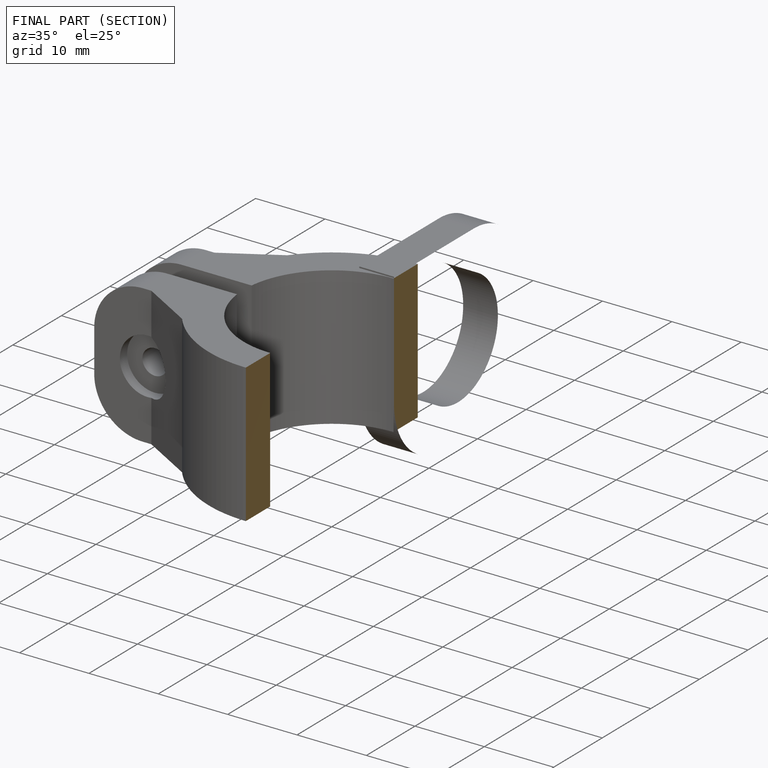
[diagram: finished part — half-section view (interior)]
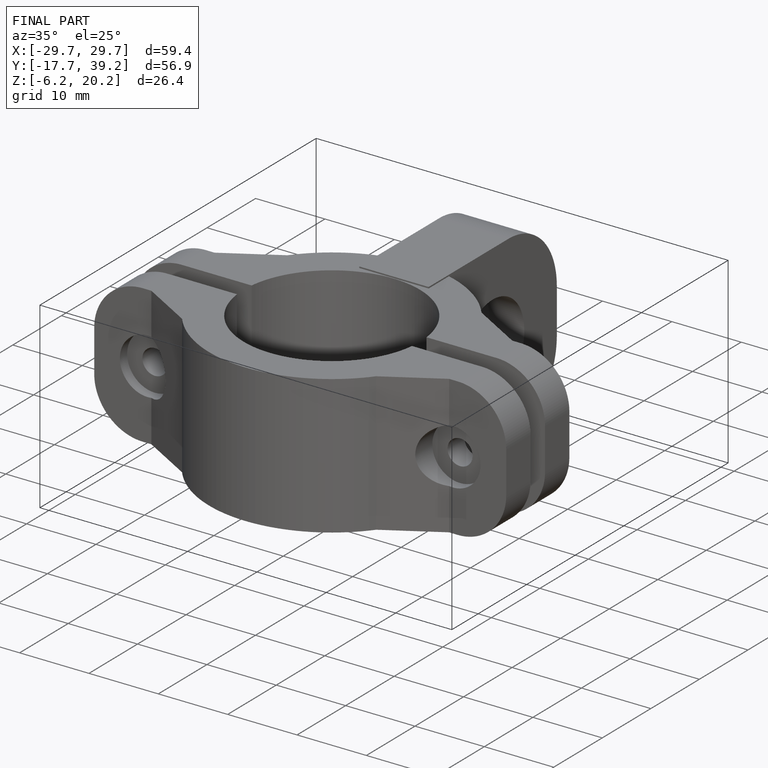
[diagram: finished part — iso view with bounding-box wireframe]
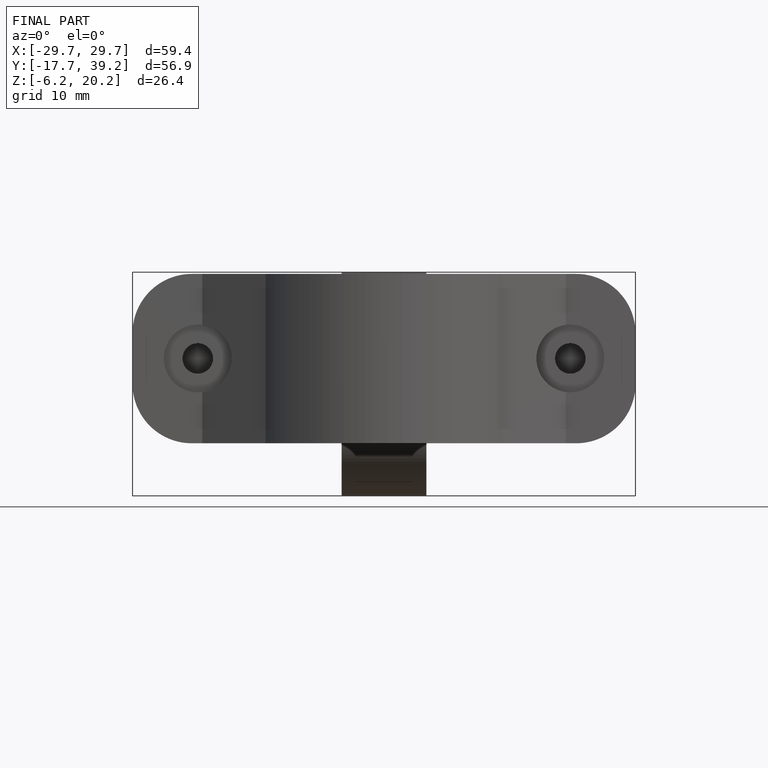
[diagram: finished part — front view with bounding-box wireframe]
